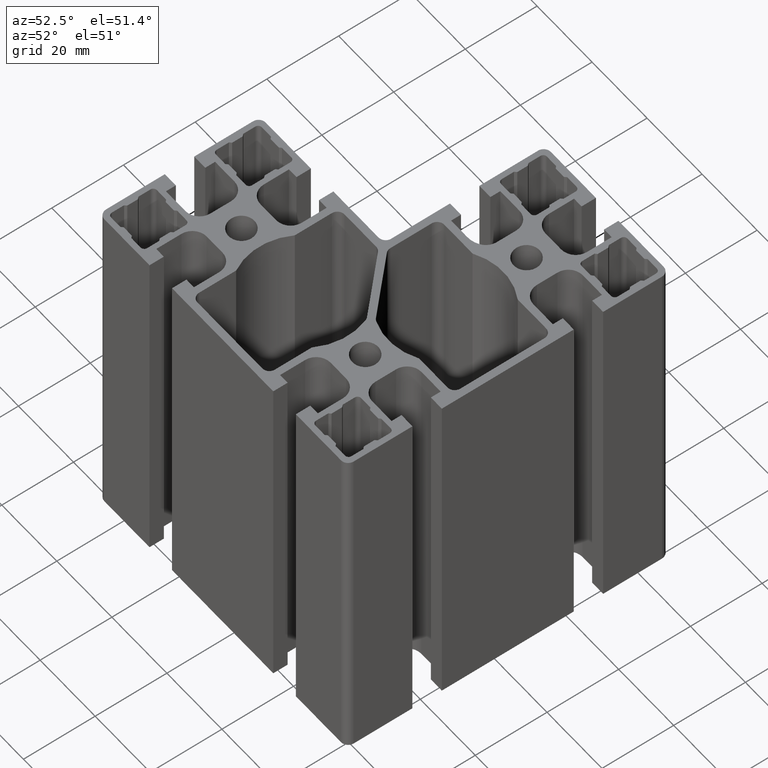
[diagram: clean part render]
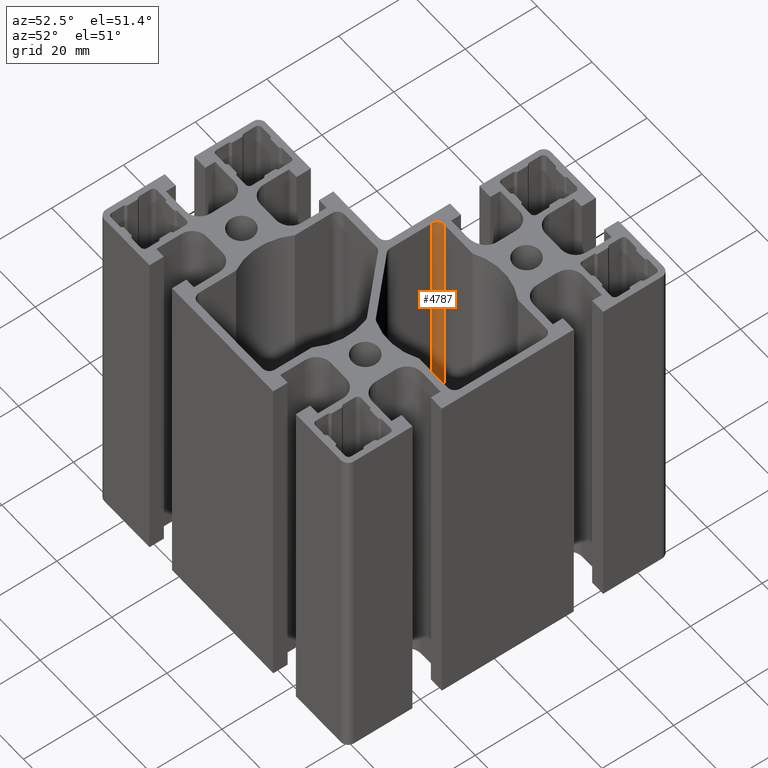
[diagram: same view with one face highlighted and labeled with its STEP entity id]
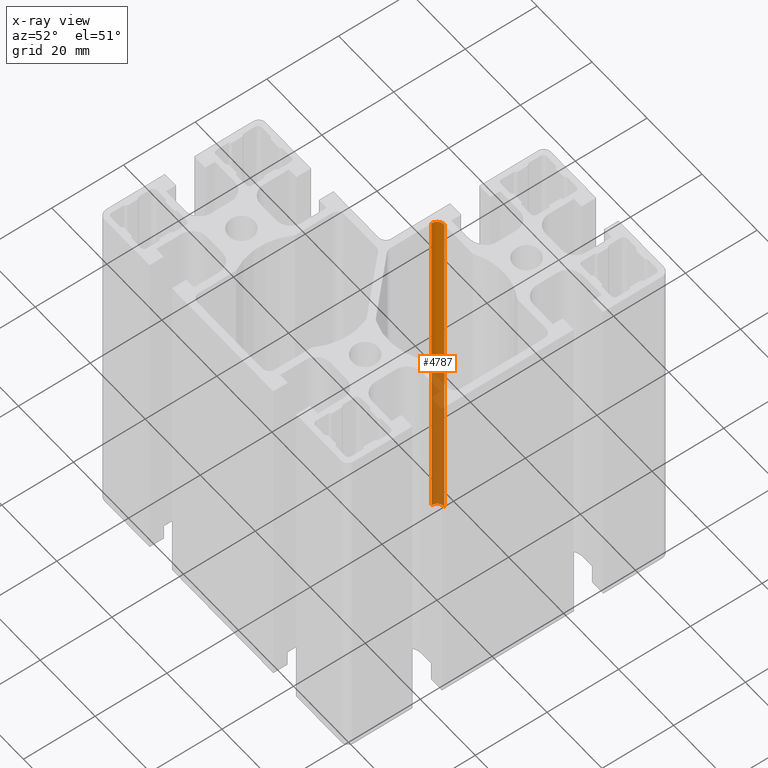
[diagram: x-ray of the same camera — body ghosted, the highlighted face saturated]
A machine part, auxiliary view. The second image highlights one B-rep face of the part: STEP entity #4787.
The next image is the same camera in x-ray: the body ghosted, the highlighted face saturated — about 45% of this face is hidden behind the body in this view.
In plain terms, the highlighted cylindrical surface (edge-blend (fillet) strip) has radius 2 mm, axis along (0, 0, 1).
Its self-contained STEP definition (entity closure, byte-faithful):
#54=CIRCLE('',#5050,2.);
#55=CIRCLE('',#5051,2.);
#166=CYLINDRICAL_SURFACE('',#5049,2.);
#233=FACE_OUTER_BOUND('',#477,.T.);
#477=EDGE_LOOP('',(#3202,#3203,#3204,#3205));
#757=LINE('',#6807,#1360);
#759=LINE('',#6813,#1362);
#1360=VECTOR('',#5474,100.);
#1362=VECTOR('',#5480,100.);
#1965=VERTEX_POINT('',#6804);
#1966=VERTEX_POINT('',#6806);
#1967=VERTEX_POINT('',#6810);
#1968=VERTEX_POINT('',#6812);
#2463=EDGE_CURVE('',#1966,#1965,#757,.T.);
#2465=EDGE_CURVE('',#1967,#1965,#54,.T.);
#2466=EDGE_CURVE('',#1968,#1967,#759,.T.);
#2467=EDGE_CURVE('',#1966,#1968,#55,.T.);
#3202=ORIENTED_EDGE('',*,*,#2463,.T.);
#3203=ORIENTED_EDGE('',*,*,#2465,.F.);
#3204=ORIENTED_EDGE('',*,*,#2466,.F.);
#3205=ORIENTED_EDGE('',*,*,#2467,.F.);
#4787=ADVANCED_FACE('',(#233),#166,.F.);
#5049=AXIS2_PLACEMENT_3D('',#6809,#5476,#5477);
#5050=AXIS2_PLACEMENT_3D('',#6811,#5478,#5479);
#5051=AXIS2_PLACEMENT_3D('',#6814,#5481,#5482);
#5474=DIRECTION('',(0.,0.,-1.));
#5476=DIRECTION('center_axis',(0.,0.,1.));
#5477=DIRECTION('ref_axis',(0.,-1.,0.));
#5478=DIRECTION('center_axis',(0.,0.,1.));
#5479=DIRECTION('ref_axis',(0.,-1.,0.));
#5480=DIRECTION('',(0.,0.,-1.));
#5481=DIRECTION('center_axis',(0.,0.,-1.));
#5482=DIRECTION('ref_axis',(0.,-1.,0.));
#6804=CARTESIAN_POINT('',(-20.4999999999999,34.2500000000016,-50.));
#6806=CARTESIAN_POINT('',(-20.4999999999999,34.2500000000016,50.));
#6807=CARTESIAN_POINT('',(-20.4999999999999,34.2500000000016,0.));
#6809=CARTESIAN_POINT('Origin',(-18.4999999999999,34.2500000000016,0.));
#6810=CARTESIAN_POINT('',(-18.4999999999999,36.2500000000016,-50.));
#6811=CARTESIAN_POINT('Origin',(-18.4999999999999,34.2500000000016,-50.));
#6812=CARTESIAN_POINT('',(-18.4999999999999,36.2500000000016,50.));
#6813=CARTESIAN_POINT('',(-18.4999999999999,36.2500000000016,0.));
#6814=CARTESIAN_POINT('Origin',(-18.4999999999999,34.2500000000016,50.));